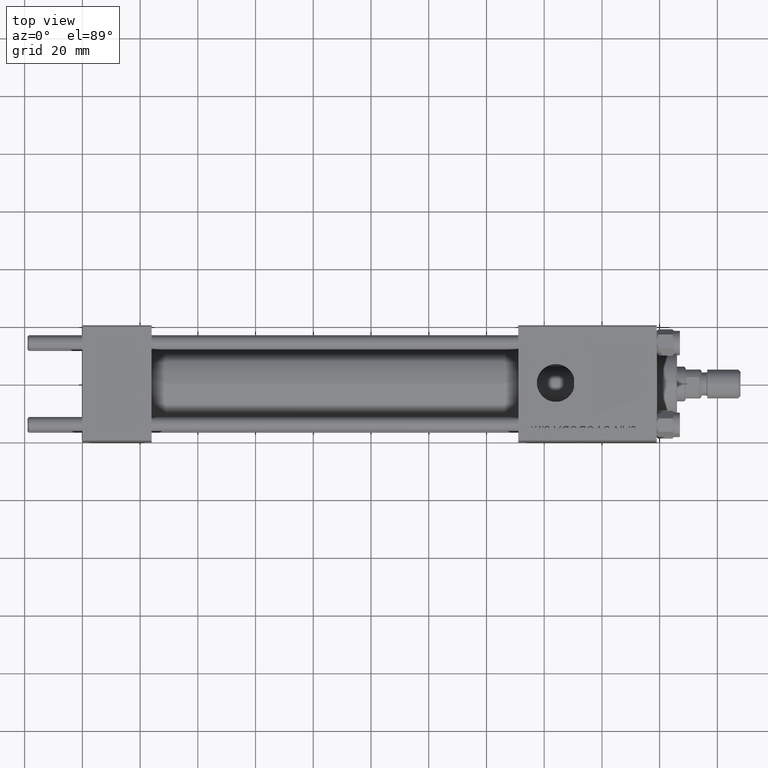
[diagram: clean part render]
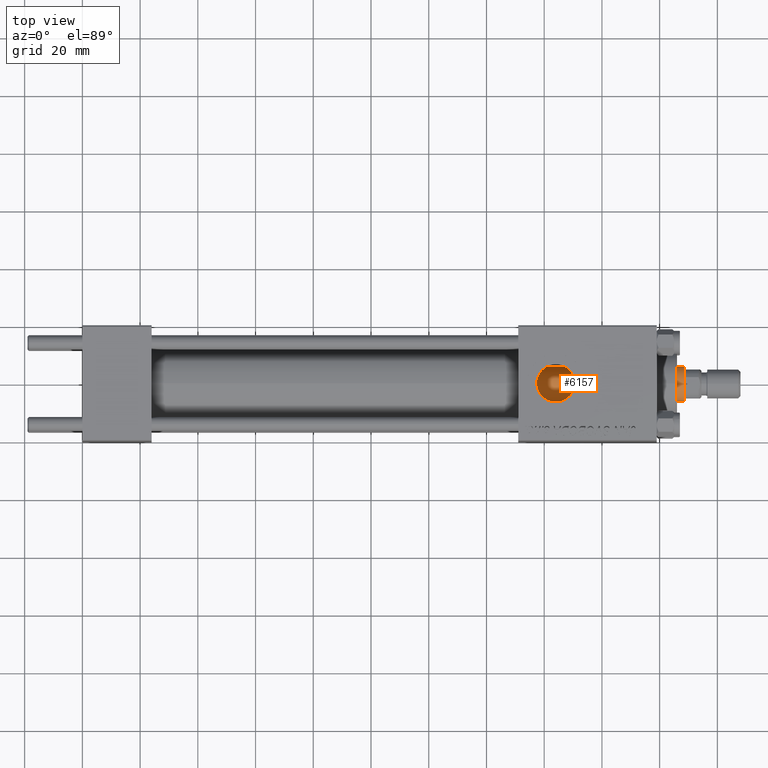
[diagram: same view with one face highlighted and labeled with its STEP entity id]
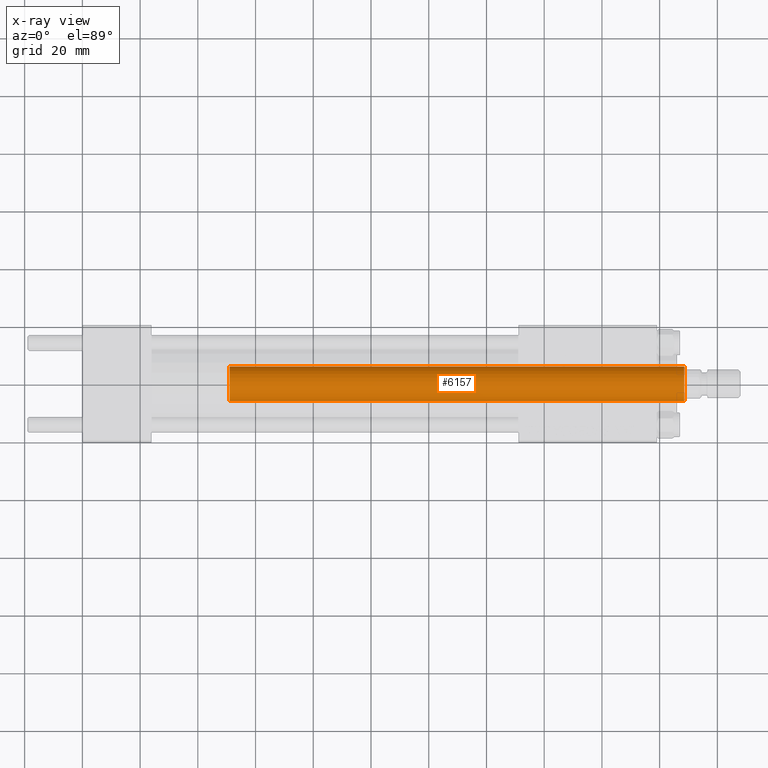
[diagram: x-ray of the same camera — body ghosted, the highlighted face saturated]
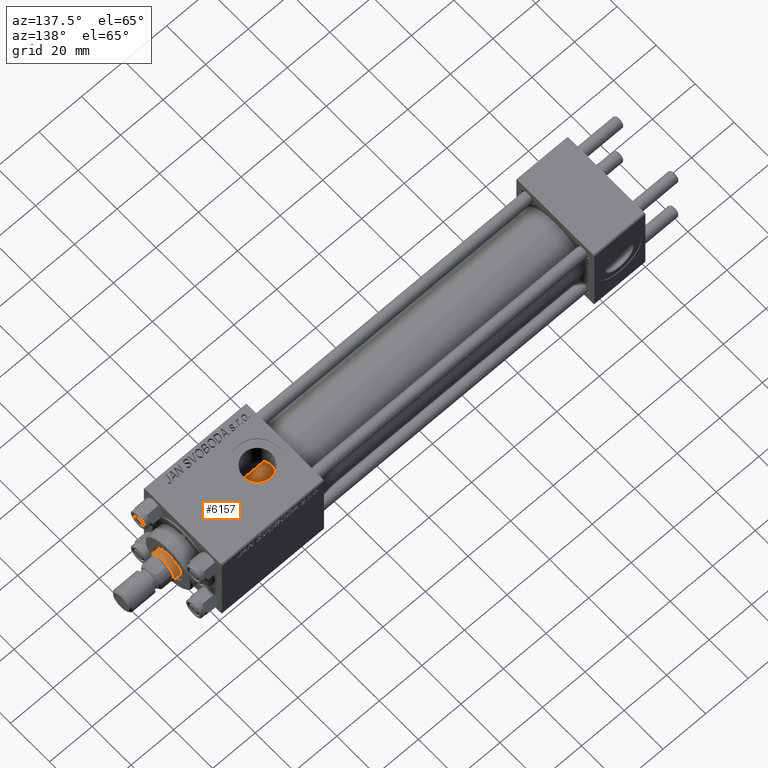
[diagram: same view with one face highlighted and labeled with its STEP entity id]
A machine part, top view. The second image highlights one B-rep face of the part: STEP entity #6157.
The next image is the same camera in x-ray: the body ghosted, the highlighted face saturated — about 0% of this face is hidden behind the body in this view.
A second angle (auxiliary view) of the same face is appended — the face is thin or edge-on in the first view.
In plain terms, the highlighted cylindrical surface (edge-blend (fillet) strip) has radius 6 mm, axis along (-1, 0, 0).
Its self-contained STEP definition (entity closure, byte-faithful):
#1545 = VECTOR ( 'NONE', #20776, 1000.000000000000000 ) ;
#2862 = ORIENTED_EDGE ( 'NONE', *, *, #17763, .F. ) ;
#3318 = DIRECTION ( 'NONE',  ( 1.000000000000000000, 0.000000000000000000, 0.000000000000000000 ) ) ;
#4396 = VERTEX_POINT ( 'NONE', #7134 ) ;
#5104 = CARTESIAN_POINT ( 'NONE',  ( 6.000000000000000888, 7.347880794884120722E-16, 185.0000000000000000 ) ) ;
#5464 = VERTEX_POINT ( 'NONE', #23963 ) ;
#5671 = EDGE_CURVE ( 'NONE', #34003, #5464, #41044, .T. ) ;
#6075 = AXIS2_PLACEMENT_3D ( 'NONE', #16832, #44357, #41028 ) ;
#6157 = ADVANCED_FACE ( 'NONE', ( #33553 ), #21825, .T. ) ;
#6391 = DIRECTION ( 'NONE',  ( 0.000000000000000000, 0.000000000000000000, -1.000000000000000000 ) ) ;
#7134 = CARTESIAN_POINT ( 'NONE',  ( -6.000000000000000888, 0.000000000000000000, 184.4999999999999716 ) ) ;
#8670 = LINE ( 'NONE', #5104, #42169 ) ;
#15828 = AXIS2_PLACEMENT_3D ( 'NONE', #25654, #29479, #34055 ) ;
#16832 = CARTESIAN_POINT ( 'NONE',  ( 0.000000000000000000, 0.000000000000000000, 27.00000000000000000 ) ) ;
#16861 = ORIENTED_EDGE ( 'NONE', *, *, #34922, .T. ) ;
#17158 = ORIENTED_EDGE ( 'NONE', *, *, #24794, .T. ) ;
#17763 = EDGE_CURVE ( 'NONE', #42462, #5464, #8670, .T. ) ;
#20776 = DIRECTION ( 'NONE',  ( -0.000000000000000000, -0.000000000000000000, -1.000000000000000000 ) ) ;
#21022 = LINE ( 'NONE', #31981, #1545 ) ;
#21825 = CYLINDRICAL_SURFACE ( 'NONE', #15828, 6.000000000000000888 ) ;
#22673 = CARTESIAN_POINT ( 'NONE',  ( 0.000000000000000000, 0.000000000000000000, 184.4999999999999716 ) ) ;
#23963 = CARTESIAN_POINT ( 'NONE',  ( 6.000000000000000888, 7.347880794884120722E-16, 27.00000000000000000 ) ) ;
#24794 = EDGE_CURVE ( 'NONE', #4396, #34003, #21022, .T. ) ;
#25654 = CARTESIAN_POINT ( 'NONE',  ( 0.000000000000000000, 0.000000000000000000, 185.0000000000000000 ) ) ;
#28446 = AXIS2_PLACEMENT_3D ( 'NONE', #22673, #6391, #3318 ) ;
#29479 = DIRECTION ( 'NONE',  ( -0.000000000000000000, -0.000000000000000000, -1.000000000000000000 ) ) ;
#31981 = CARTESIAN_POINT ( 'NONE',  ( -6.000000000000000888, 0.000000000000000000, 185.0000000000000000 ) ) ;
#33553 = FACE_OUTER_BOUND ( 'NONE', #44539, .T. ) ;
#34003 = VERTEX_POINT ( 'NONE', #48743 ) ;
#34055 = DIRECTION ( 'NONE',  ( -1.000000000000000000, 0.000000000000000000, 0.000000000000000000 ) ) ;
#34922 = EDGE_CURVE ( 'NONE', #42462, #4396, #39000, .T. ) ;
#36200 = DIRECTION ( 'NONE',  ( -0.000000000000000000, -0.000000000000000000, -1.000000000000000000 ) ) ;
#39000 = CIRCLE ( 'NONE', #28446, 6.000000000000000888 ) ;
#40375 = ORIENTED_EDGE ( 'NONE', *, *, #5671, .T. ) ;
#41028 = DIRECTION ( 'NONE',  ( 1.000000000000000000, 0.000000000000000000, 0.000000000000000000 ) ) ;
#41044 = CIRCLE ( 'NONE', #6075, 6.000000000000000888 ) ;
#42169 = VECTOR ( 'NONE', #36200, 1000.000000000000000 ) ;
#42462 = VERTEX_POINT ( 'NONE', #45603 ) ;
#44357 = DIRECTION ( 'NONE',  ( 0.000000000000000000, 0.000000000000000000, 1.000000000000000000 ) ) ;
#44539 = EDGE_LOOP ( 'NONE', ( #2862, #16861, #17158, #40375 ) ) ;
#45603 = CARTESIAN_POINT ( 'NONE',  ( 6.000000000000000888, 7.347880794884120722E-16, 184.4999999999999716 ) ) ;
#48743 = CARTESIAN_POINT ( 'NONE',  ( -6.000000000000000888, 0.000000000000000000, 27.00000000000000000 ) ) ;